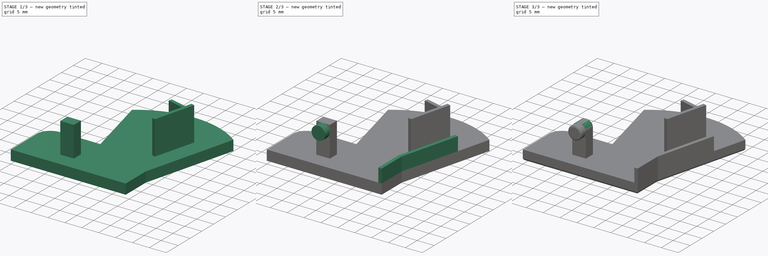
[diagram: build sequence overview — one tinted view per stage of 3, left to right]
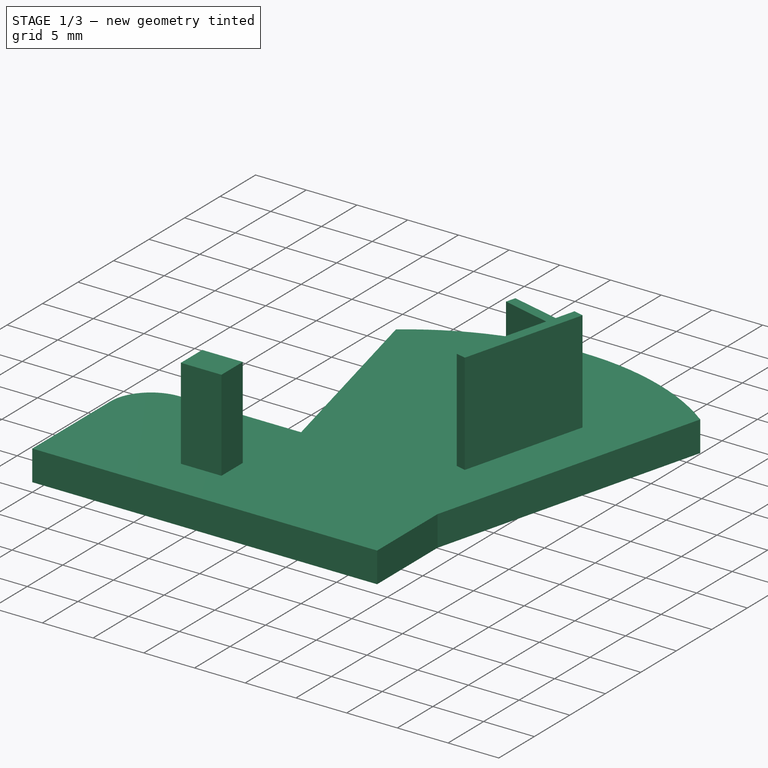
[diagram: stage 1 of 3 — iso view after this stage's code; geometry added in this stage tinted green]
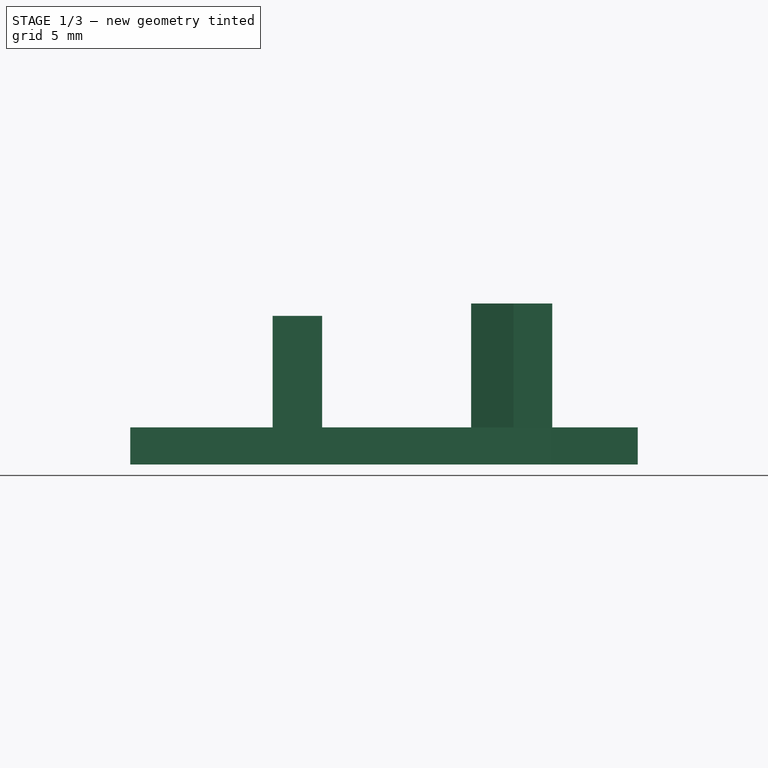
[diagram: stage 1 of 3 — front view after this stage's code; geometry added in this stage tinted green]
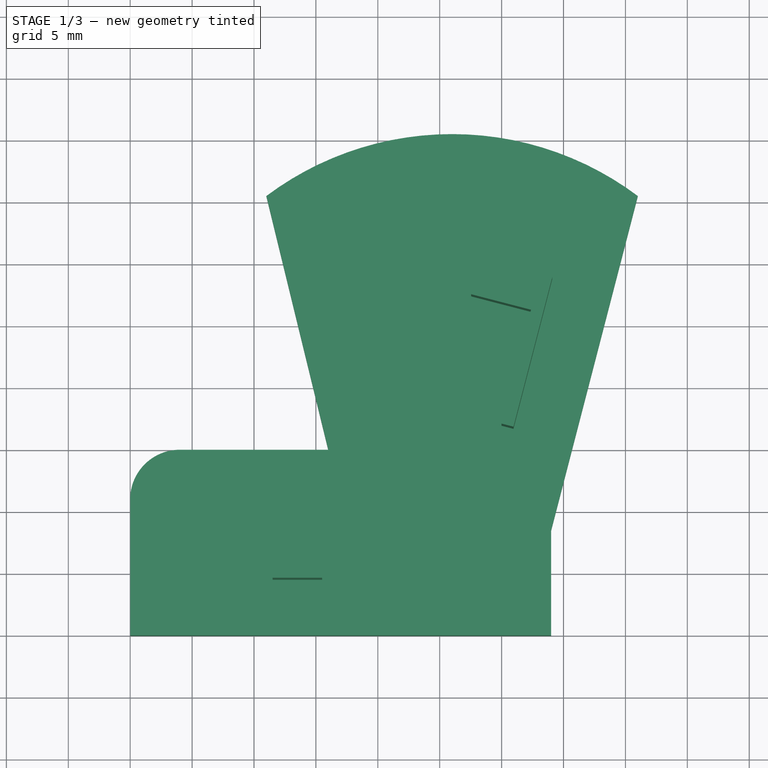
[diagram: stage 1 of 3 — top view after this stage's code; geometry added in this stage tinted green]
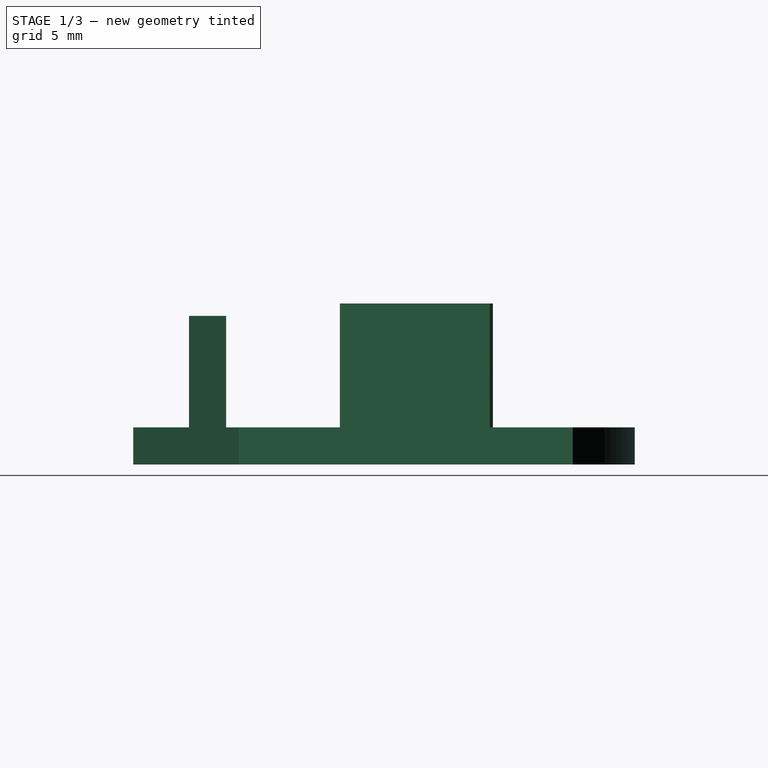
[diagram: stage 1 of 3 — right view after this stage's code; geometry added in this stage tinted green]
FCSTD DOCUMENT  (FreeCAD 0.19R24276 (Git))
Label: v1
License: All rights reserved
LicenseURL: http://en.wikipedia.org/wiki/All_rights_reserved
objects: Sketcher::SketchObject×5, PartDesign::Pad×5, PartDesign::Fillet×3, PartDesign::Body×1, App::Part×1
note: 22 computed .brp shape members not serialized (recipe doc carries the construction recipe); baked Part::Feature solids carry a one-line shape summary decoded from their .brp

FEATURE [Sketcher::SketchObject] Sketch
  FullyConstrained = true
  sketch-geometry (9):
    g0: LineSegment StartX=0 StartY=0 StartZ=0 EndX=34 EndY=0 EndZ=0
    g1: LineSegment StartX=34 StartY=0 StartZ=0 EndX=34 EndY=8.5 EndZ=0
    g2: LineSegment StartX=34 StartY=8.5 StartZ=0 EndX=41 EndY=35.5 EndZ=0
    g3: LineSegment StartX=0 StartY=0 StartZ=0 EndX=0 EndY=11 EndZ=0
    g4: LineSegment StartX=4 StartY=15 StartZ=0 EndX=16 EndY=15 EndZ=0
    g5: LineSegment StartX=16 StartY=15 StartZ=0 EndX=11 EndY=35.5 EndZ=0
    g6: ArcOfCircle CenterX=4 CenterY=11 CenterZ=0 NormalX=0 NormalY=0 NormalZ=1 AngleXU=0 Radius=4 StartAngle=1.5708 EndAngle=3.14159
    g7: GeomPoint X=26 Y=40.5 Z=0
    g8: ArcOfCircle CenterX=26 CenterY=15.5 CenterZ=0 NormalX=0 NormalY=0 NormalZ=1 AngleXU=0 Radius=25 StartAngle=0.927295 EndAngle=2.2143
  constraints (27):
    c: Coincident(g0,g-1)
    c: PointOnObject(g0,g-1)
    c: Coincident(g1,g0)
    c: Vertical(g1)
    c: Coincident(g2,g1)
    c: Coincident(g3,g0)
    c: PointOnObject(g3,g-2)
    c: Horizontal(g4)
    c: Coincident(g5,g4)
    c: DistanceX(g0,g0) = 34
    c: DistanceY(g3,g3) = 11
    c: DistanceY(g0,g4) = 15
    c: DistanceX(g0,g4) = 4
    c: Coincident(g6,g3)
    c: Coincident(g6,g4)
    c: DistanceX(g3,g6) = 4
    c: DistanceX(g4,g4) = 12
    c: DistanceY(g1,g1) = 8.5
    c: DistanceY(g5,g5) = 20.5
    c: DistanceX(g3,g5) = 11
    c: DistanceX(g3,g2) = 41
    c: DistanceY(g0,g2) = 35.5
    c: DistanceX(g5,g7) = 15
    c: DistanceY(g0,g7) = 40.5
    c: Coincident(g8,g5)
    c: Coincident(g8,g2)
    c: PointOnObject(g7,g8)
FEATURE [Sketcher::SketchObject] Sketch001
  FullyConstrained = false
  sketch-geometry (4):
    g0: LineSegment StartX=11.5 StartY=7.5 StartZ=0 EndX=15.5 EndY=7.5 EndZ=0
    g1: LineSegment StartX=15.5 StartY=7.5 StartZ=0 EndX=15.5 EndY=4.5 EndZ=0
    g2: LineSegment StartX=15.5 StartY=4.5 StartZ=0 EndX=11.5 EndY=4.5 EndZ=0
    g3: LineSegment StartX=11.5 StartY=4.5 StartZ=0 EndX=11.5 EndY=7.5 EndZ=0
  constraints (10):
    c: Coincident(g0,g1)
    c: Coincident(g1,g2)
    c: Coincident(g2,g3)
    c: Coincident(g3,g0)
    c: Horizontal(g0)
    c: Horizontal(g2)
    c: Vertical(g1)
    c: Vertical(g3)
    c: Distance(g1) = 3
    c: Distance(g0) = 4
FEATURE [PartDesign::Pad] Pad
  Direction = (1,1,1)
  Length = 3
  Length2 = 100
  Profile = -> Sketch
  Type = 0
FEATURE [Sketcher::SketchObject] Sketch002
  FullyConstrained = false
  sketch-geometry (9):
    g0: GeomPoint X=26 Y=40.5 Z=0
    g1: LineSegment StartX=30.9578 StartY=16.689 StartZ=0 EndX=34.0948 EndY=28.7889 EndZ=0
    g2: LineSegment StartX=34.0948 StartY=28.7889 StartZ=0 EndX=33.1268 EndY=29.0399 EndZ=0
    g3: LineSegment StartX=33.1268 StartY=29.0399 StartZ=0 EndX=32.6249 EndY=27.1039 EndZ=0
    g4: LineSegment StartX=32.6249 StartY=27.1039 StartZ=0 EndX=27.7849 EndY=28.3587 EndZ=0
    g5: LineSegment StartX=27.7849 StartY=28.3587 StartZ=0 EndX=27.5339 EndY=27.3907 EndZ=0
    g6: LineSegment StartX=27.5339 StartY=27.3907 StartZ=0 EndX=32.3739 EndY=26.1359 EndZ=0
    g7: LineSegment StartX=32.3739 StartY=26.1359 StartZ=0 EndX=29.9898 EndY=16.9399 EndZ=0
    g8: LineSegment StartX=29.9898 StartY=16.9399 StartZ=0 EndX=30.9578 EndY=16.689 EndZ=0
  constraints (21):
    c: Coincident(g2,g1)
    c: Coincident(g3,g2)
    c: Coincident(g5,g4)
    c: Coincident(g8,g7)
    c: Coincident(g8,g1)
    c: Perpendicular(g7,g8)
    c: Perpendicular(g1,g8)
    c: Perpendicular(g2,g1)
    c: Perpendicular(g2,g3)
    c: Perpendicular(g4,g3)
    c: Perpendicular(g7,g6)
    c: Perpendicular(g5,g6)
    c: Distance(g1) = 12.5
    c: Coincident(g4,g3)
    c: Distance(g2) = 1
    c: Distance(g8) = 1
    c: Coincident(g6,g7)
    c: Coincident(g6,g5)
    c: Distance(g5) = 1
    c: Distance(g6) = 5
    c: Distance(g3) = 2
FEATURE [Sketcher::SketchObject] Sketch003
  FullyConstrained = false
  sketch-geometry (6):
    g0: LineSegment StartX=34 StartY=0 StartZ=0 EndX=34 EndY=8.5 EndZ=0
    g1: LineSegment StartX=33 StartY=0 StartZ=0 EndX=33 EndY=8.62752 EndZ=0
    g2: LineSegment StartX=33 StartY=8.62752 StartZ=0 EndX=37.5173 EndY=26.0515 EndZ=0
    g3: LineSegment StartX=37.5173 StartY=26.0515 StartZ=0 EndX=38.4853 EndY=25.8005 EndZ=0
    g4: LineSegment StartX=33 StartY=0 StartZ=0 EndX=34 EndY=0 EndZ=0
    g5: LineSegment StartX=34 StartY=8.5 StartZ=0 EndX=38.4853 EndY=25.8005 EndZ=0
  constraints (15):
    c: PointOnObject(g0,g-1)
    c: Vertical(g0)
    c: DistanceY(g0,g0) = 8.5
    c: Vertical(g1)
    c: Coincident(g2,g1)
    c: Coincident(g3,g2)
    c: Distance(g3) = 1
    c: Perpendicular(g3,g2)
    c: DistanceX(g1,g0) = 1
    c: Distance(g2) = 18
    c: Coincident(g4,g1)
    c: Coincident(g4,g0)
    c: Horizontal(g4)
    c: Coincident(g5,g0)
    c: Coincident(g5,g3)
FEATURE [PartDesign::Pad] Pad001
  BaseFeature = -> Pad
  Direction = (1,1,1)
  Length = 13
  Length2 = 100
  Profile = -> Sketch002
  Type = 0
FEATURE [PartDesign::Pad] Pad002
  BaseFeature = -> Pad001
  Direction = (1,1,1)
  Length = 12
  Length2 = 100
  Profile = -> Sketch001
  Type = 0
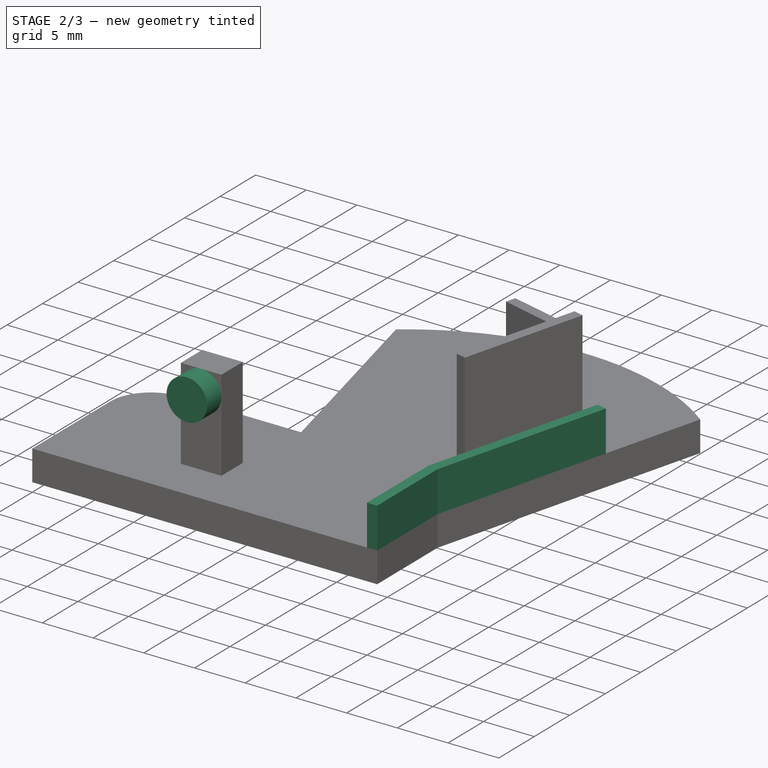
[diagram: stage 2 of 3 — iso view after this stage's code; geometry added in this stage tinted green]
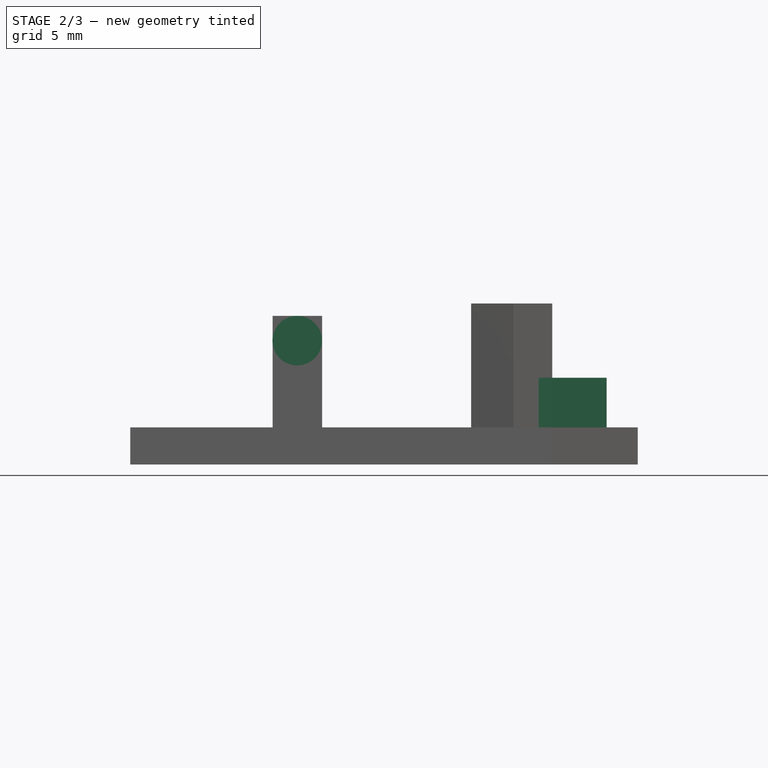
[diagram: stage 2 of 3 — front view after this stage's code; geometry added in this stage tinted green]
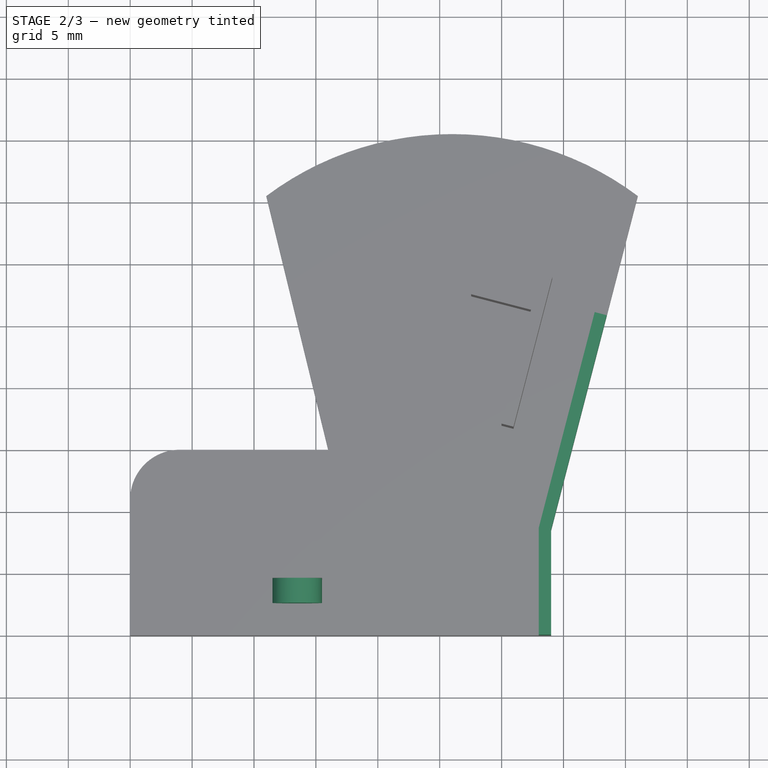
[diagram: stage 2 of 3 — top view after this stage's code; geometry added in this stage tinted green]
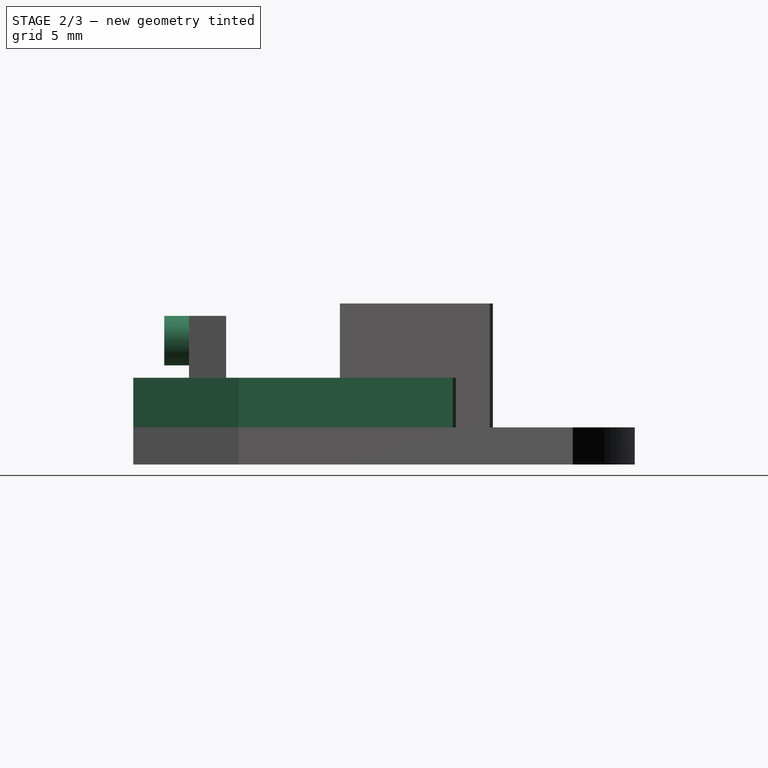
[diagram: stage 2 of 3 — right view after this stage's code; geometry added in this stage tinted green]
FEATURE [PartDesign::Pad] Pad003
  BaseFeature = -> Pad002
  Direction = (1,1,1)
  Length = 7
  Length2 = 100
  Profile = -> Sketch003
  Type = 0
FEATURE [Sketcher::SketchObject] Sketch005
  FullyConstrained = false
  MapMode = 5
  Placement = pos=(0,4.5,0) rot=(1,0,0;1.5708rad)
  Support = -> [Pad003]
  sketch-geometry (1):
    g0: Circle CenterX=13.4909 CenterY=10.003 CenterZ=0 NormalX=0 NormalY=0 NormalZ=1 AngleXU=0 Radius=2
  constraints (1):
    c: Radius(g0) = 2
FEATURE [PartDesign::Pad] Pad004
  BaseFeature = -> Pad003
  Direction = (1,1,1)
  Length = 2
  Length2 = 100
  Profile = -> Sketch005
  Type = 0
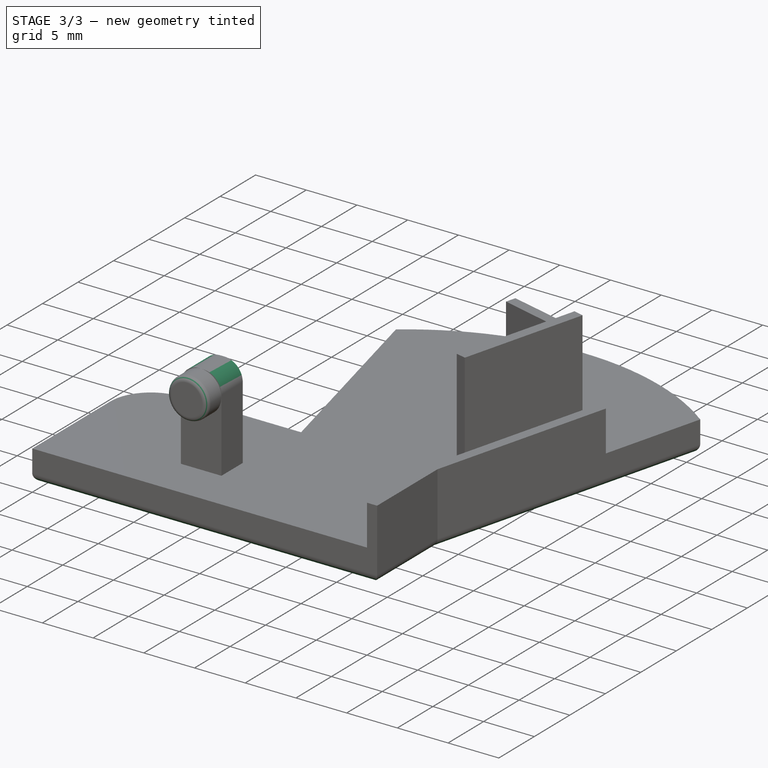
[diagram: stage 3 of 3 — iso view after this stage's code; geometry added in this stage tinted green]
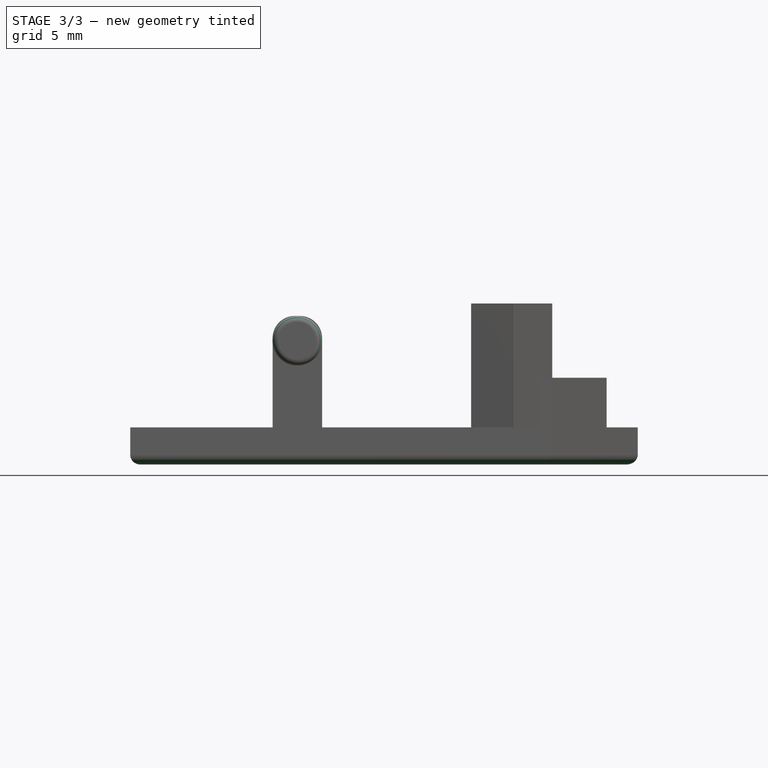
[diagram: stage 3 of 3 — front view after this stage's code; geometry added in this stage tinted green]
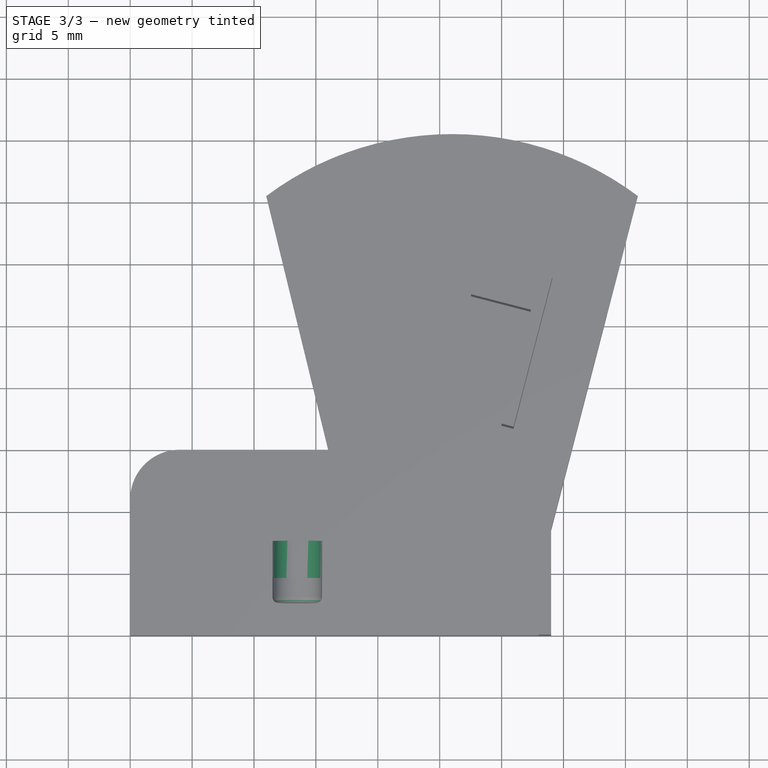
[diagram: stage 3 of 3 — top view after this stage's code; geometry added in this stage tinted green]
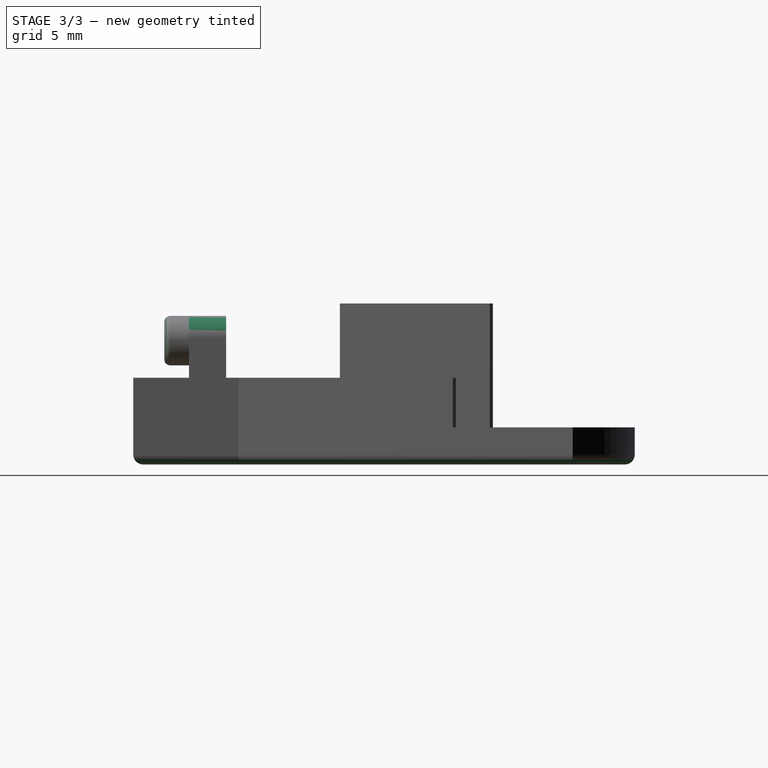
[diagram: stage 3 of 3 — right view after this stage's code; geometry added in this stage tinted green]
FEATURE [PartDesign::Fillet] Fillet
  Base = -> Pad004 [Edge68,Edge67]
  BaseFeature = -> Pad004
  Radius = 1.8
  SupportTransform = false
FEATURE [PartDesign::Fillet] Fillet001
  Base = -> Fillet [Edge85]
  BaseFeature = -> Fillet
  Radius = 0.5
  SupportTransform = false
FEATURE [PartDesign::Fillet] Fillet002
  Base = -> Fillet001 [Edge103,Edge114,Edge112,Edge66,Edge70,Edge71,Edge52,Edge54,Edge56,Edge57]
  BaseFeature = -> Fillet001
  Radius = 0.8
  SupportTransform = false
FEATURE [PartDesign::Body] Body
  Group = -> [Sketch,Pad,Sketch002,Pad001,Sketch001,Pad002,Sketch003,Pad003,Sketch005,Pad004,Fillet,Fillet001,Fillet002]
  Origin = -> Origin001
  Tip = -> Fillet002
FEATURE [App::Part] Part
  Group = -> [Body]
  Origin = -> Origin
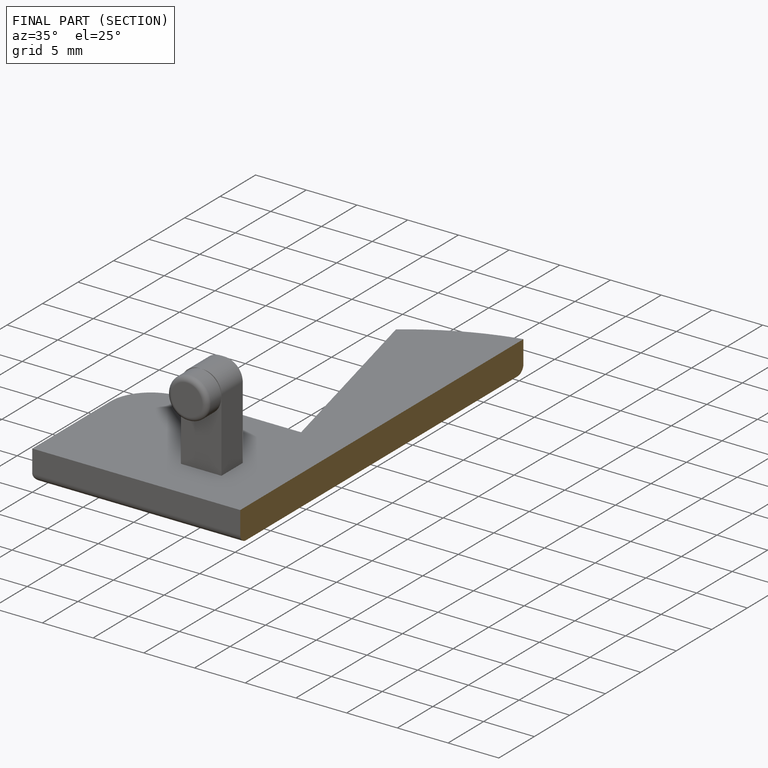
[diagram: finished part — half-section view (interior)]
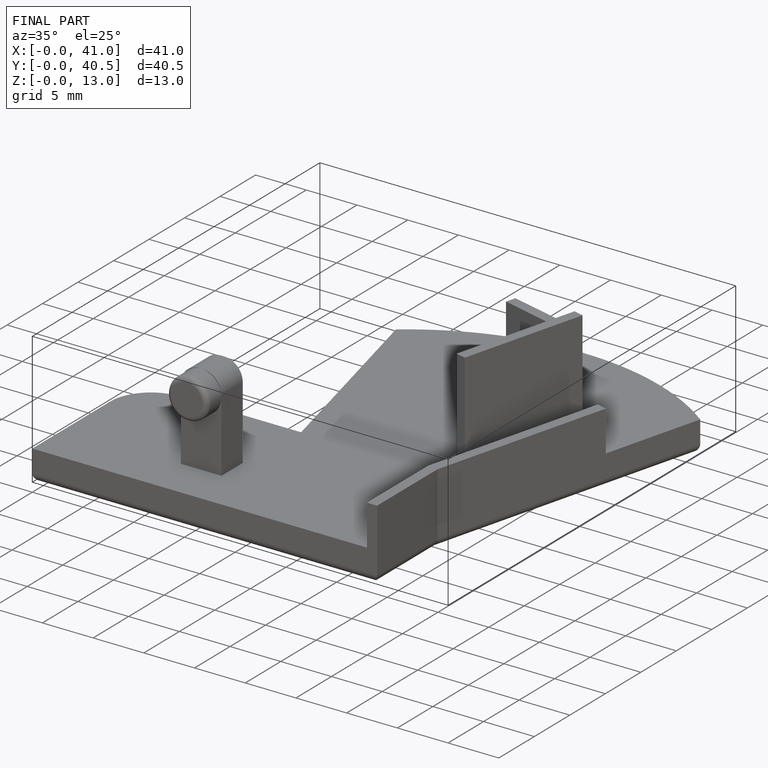
[diagram: finished part — iso view with bounding-box wireframe]
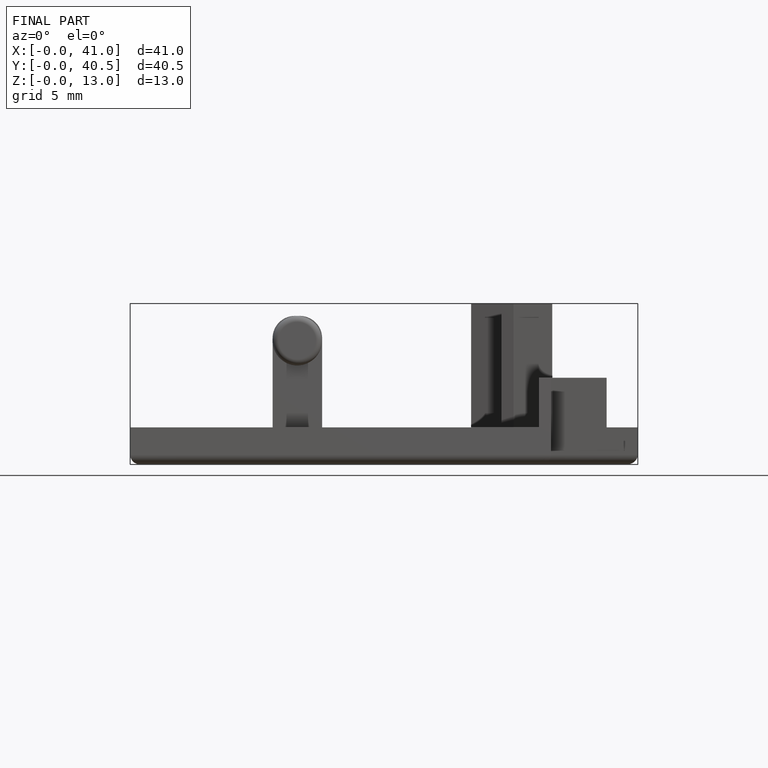
[diagram: finished part — front view with bounding-box wireframe]
